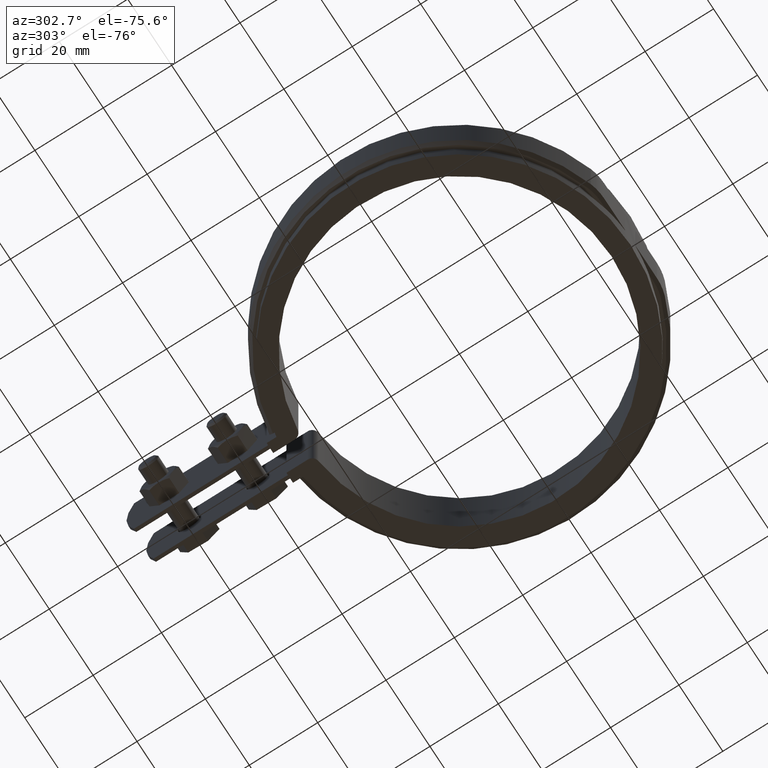
[diagram: clean part render]
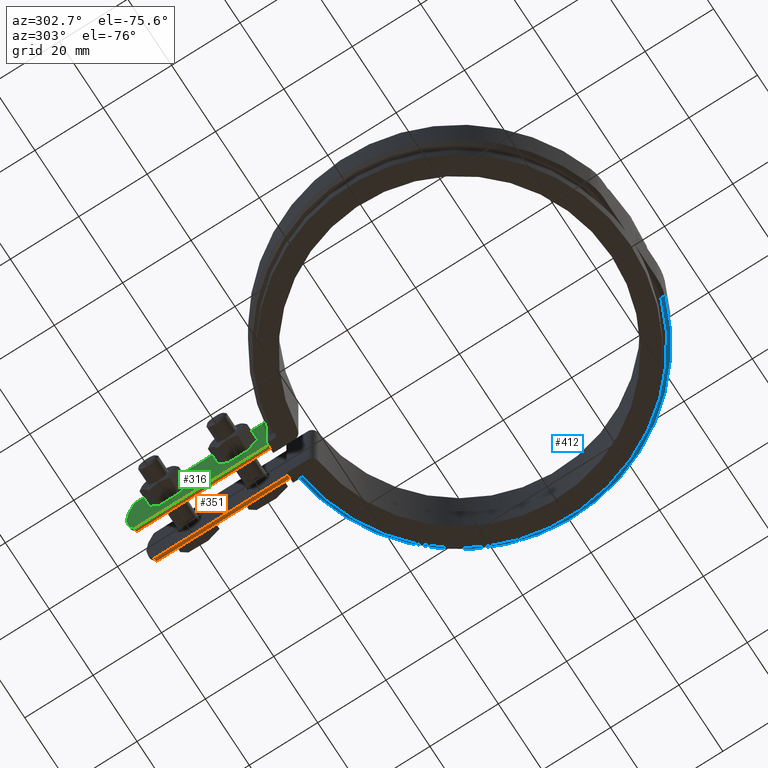
[diagram: same view with three faces highlighted in distinct colors, each labeled with its STEP entity id]
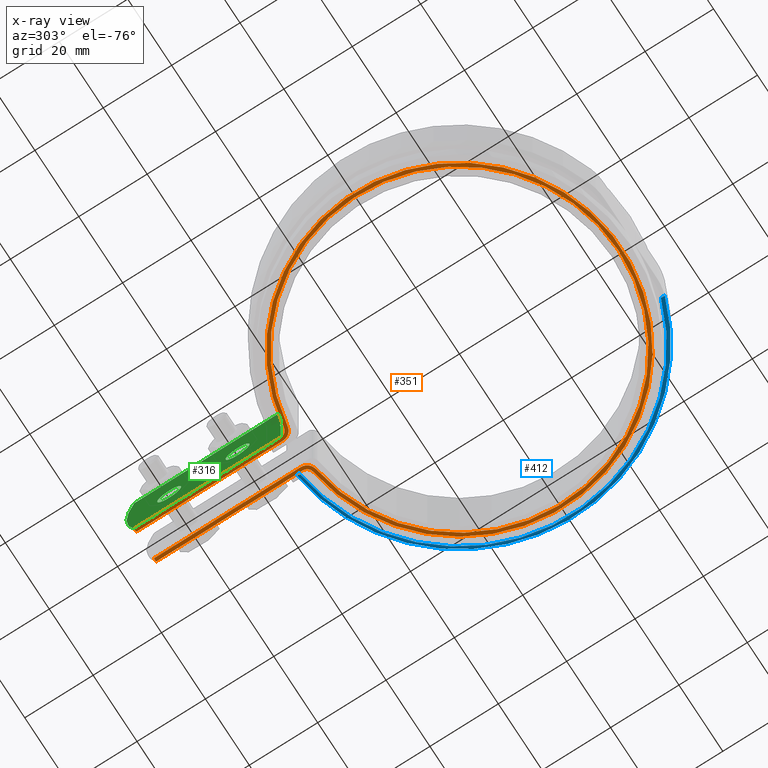
[diagram: x-ray of the same camera — body ghosted, the three highlighted faces saturated]
A machine part, auxiliary view with three faces highlighted in distinct colors.
The next image is the same camera in x-ray (body ghosted, the three faces saturated) — at least one of them is partly hidden behind the body in this view.
Their STEP definitions:

[orange] entity #351 — the highlighted planar face has unit normal (0, 0, -1).
#351 = ADVANCED_FACE( '', ( #590 ), #591, .T. );
#590 = FACE_OUTER_BOUND( '', #1278, .T. );
#591 = PLANE( '', #1279 );
#1278 = EDGE_LOOP( '', ( #2614, #2615, #2616, #2617, #2618, #2619, #2620, #2621, #2622, #2623, #2624, #2625 ) );
#1279 = AXIS2_PLACEMENT_3D( '', #2626, #2627, #2628 );
#2614 = ORIENTED_EDGE( '', *, *, #4020, .F. );
#2615 = ORIENTED_EDGE( '', *, *, #4126, .T. );
#2616 = ORIENTED_EDGE( '', *, *, #4117, .F. );
#2617 = ORIENTED_EDGE( '', *, *, #4125, .F. );
#2618 = ORIENTED_EDGE( '', *, *, #4047, .F. );
#2619 = ORIENTED_EDGE( '', *, *, #4122, .F. );
#2620 = ORIENTED_EDGE( '', *, *, #4015, .F. );
#2621 = ORIENTED_EDGE( '', *, *, #4136, .T. );
#2622 = ORIENTED_EDGE( '', *, *, #4110, .F. );
#2623 = ORIENTED_EDGE( '', *, *, #4128, .F. );
#2624 = ORIENTED_EDGE( '', *, *, #4086, .F. );
#2625 = ORIENTED_EDGE( '', *, *, #4137, .F. );
#2626 = CARTESIAN_POINT( '', ( -7.00000000000000, 49.0530580086502, -12.5000000000000 ) );
#2627 = DIRECTION( '', ( 0.000000000000000, 0.000000000000000, -1.00000000000000 ) );
#2628 = DIRECTION( '', ( 1.00000000000000, -6.16283340149655E-017, 0.000000000000000 ) );
#4015 = EDGE_CURVE( '', #4513, #4508, #4515, .T. );
#4020 = EDGE_CURVE( '', #4523, #4525, #4526, .T. );
#4047 = EDGE_CURVE( '', #4575, #4577, #4578, .T. );
#4086 = EDGE_CURVE( '', #4651, #4653, #4654, .T. );
#4110 = EDGE_CURVE( '', #4684, #4686, #4687, .T. );
#4117 = EDGE_CURVE( '', #4698, #4700, #4701, .T. );
#4122 = EDGE_CURVE( '', #4508, #4575, #4708, .T. );
#4125 = EDGE_CURVE( '', #4577, #4698, #4711, .T. );
#4126 = EDGE_CURVE( '', #4523, #4700, #4712, .T. );
#4128 = EDGE_CURVE( '', #4653, #4684, #4714, .T. );
#4136 = EDGE_CURVE( '', #4513, #4686, #4722, .T. );
#4137 = EDGE_CURVE( '', #4525, #4651, #4723, .T. );
#4508 = VERTEX_POINT( '', #5334 );
#4513 = VERTEX_POINT( '', #5341 );
#4515 = LINE( '', #5343, #5344 );
#4523 = VERTEX_POINT( '', #5361 );
#4525 = VERTEX_POINT( '', #5363 );
#4526 = LINE( '', #5364, #5365 );
#4575 = VERTEX_POINT( '', #5582 );
#4577 = VERTEX_POINT( '', #5585 );
#4578 = CIRCLE( '', #5586, 46.5500000000000 );
#4651 = VERTEX_POINT( '', #6231 );
#4653 = VERTEX_POINT( '', #6234 );
#4654 = CIRCLE( '', #6235, 47.5500000000000 );
#4684 = VERTEX_POINT( '', #6475 );
#4686 = VERTEX_POINT( '', #6478 );
#4687 = LINE( '', #6479, #6480 );
#4698 = VERTEX_POINT( '', #6493 );
#4700 = VERTEX_POINT( '', #6496 );
#4701 = LINE( '', #6497, #6498 );
#4708 = CIRCLE( '', #6505, 3.00000000000000 );
#4711 = CIRCLE( '', #6539, 3.00000000000000 );
#4712 = LINE( '', #6540, #6541 );
#4714 = CIRCLE( '', #6544, 2.00000000000000 );
#4722 = LINE( '', #6609, #6610 );
#4723 = CIRCLE( '', #6611, 2.00000000000000 );
#5334 = CARTESIAN_POINT( '', ( 4.00000000000000, 49.0530580086502, -12.5000000000000 ) );
#5341 = CARTESIAN_POINT( '', ( 3.99999999999999, 91.9565717536124, -12.5000000000000 ) );
#5343 = CARTESIAN_POINT( '', ( 3.99999999999999, 94.1963881048236, -12.5000000000000 ) );
#5344 = VECTOR( '', #8241, 1000.00000000000 );
#5361 = CARTESIAN_POINT( '', ( -4.99999999999999, 91.9565717536124, -12.5000000000000 ) );
#5363 = CARTESIAN_POINT( '', ( -5.00000000000000, 49.0530580086502, -12.5000000000000 ) );
#5364 = CARTESIAN_POINT( '', ( -4.99999999999999, 94.1963881048236, -12.5000000000000 ) );
#5365 = VECTOR( '', #8247, 1000.00000000000 );
#5582 = CARTESIAN_POINT( '', ( 6.57618567103937, 46.0831453138782, -12.5000000000000 ) );
#5585 = CARTESIAN_POINT( '', ( -6.57618567103938, 46.0831453138782, -12.5000000000000 ) );
#5586 = AXIS2_PLACEMENT_3D( '', #8286, #8287, #8288 );
#6231 = CARTESIAN_POINT( '', ( -6.71745711402624, 47.0731162121356, -12.5000000000000 ) );
#6234 = CARTESIAN_POINT( '', ( 6.71745711402622, 47.0731162121356, -12.5000000000000 ) );
#6235 = AXIS2_PLACEMENT_3D( '', #8323, #8324, #8325 );
#6475 = CARTESIAN_POINT( '', ( 5.00000000000000, 49.0530580086502, -12.5000000000000 ) );
#6478 = CARTESIAN_POINT( '', ( 4.99999999999999, 91.9565717536124, -12.5000000000000 ) );
#6479 = CARTESIAN_POINT( '', ( 5.00000000000000, 49.0530580086502, -12.5000000000000 ) );
#6480 = VECTOR( '', #8341, 1000.00000000000 );
#6493 = CARTESIAN_POINT( '', ( -4.00000000000000, 49.0530580086502, -12.5000000000000 ) );
#6496 = CARTESIAN_POINT( '', ( -4.00000000000000, 91.9565717536124, -12.5000000000000 ) );
#6497 = CARTESIAN_POINT( '', ( -4.00000000000000, 49.0530580086502, -12.5000000000000 ) );
#6498 = VECTOR( '', #8354, 1000.00000000000 );
#6505 = AXIS2_PLACEMENT_3D( '', #8367, #8368, #8369 );
#6539 = AXIS2_PLACEMENT_3D( '', #8373, #8374, #8375 );
#6540 = CARTESIAN_POINT( '', ( -125.659314806911, 91.9565717536124, -12.5000000000000 ) );
#6541 = VECTOR( '', #8376, 1000.00000000000 );
#6544 = AXIS2_PLACEMENT_3D( '', #8378, #8379, #8380 );
#6609 = CARTESIAN_POINT( '', ( -125.659314806911, 91.9565717536124, -12.5000000000000 ) );
#6610 = VECTOR( '', #8382, 1000.00000000000 );
#6611 = AXIS2_PLACEMENT_3D( '', #8383, #8384, #8385 );
#8241 = DIRECTION( '', ( 6.16283340149654E-017, -1.00000000000000, 0.000000000000000 ) );
#8247 = DIRECTION( '', ( -6.16283340149655E-017, -1.00000000000000, 0.000000000000000 ) );
#8286 = CARTESIAN_POINT( '', ( -3.46944695195361E-015, 0.000000000000000, -12.5000000000000 ) );
#8287 = DIRECTION( '', ( 0.000000000000000, 0.000000000000000, -1.00000000000000 ) );
#8288 = DIRECTION( '', ( 1.00000000000000, -6.16283340149655E-017, 0.000000000000000 ) );
#8323 = CARTESIAN_POINT( '', ( -3.46944695195361E-015, 0.000000000000000, -12.5000000000000 ) );
#8324 = DIRECTION( '', ( 0.000000000000000, 0.000000000000000, 1.00000000000000 ) );
#8325 = DIRECTION( '', ( 1.00000000000000, -6.16283340149655E-017, 0.000000000000000 ) );
#8341 = DIRECTION( '', ( -6.16283340149654E-017, 1.00000000000000, 0.000000000000000 ) );
#8354 = DIRECTION( '', ( 6.16283340149655E-017, 1.00000000000000, 0.000000000000000 ) );
#8367 = CARTESIAN_POINT( '', ( 7.00000000000000, 49.0530580086502, -12.5000000000000 ) );
#8368 = DIRECTION( '', ( 0.000000000000000, 0.000000000000000, 1.00000000000000 ) );
#8369 = DIRECTION( '', ( -1.00000000000000, 6.16283340149655E-017, 0.000000000000000 ) );
#8373 = CARTESIAN_POINT( '', ( -7.00000000000000, 49.0530580086502, -12.5000000000000 ) );
#8374 = DIRECTION( '', ( 0.000000000000000, 0.000000000000000, 1.00000000000000 ) );
#8375 = DIRECTION( '', ( 1.00000000000000, -6.16283340149655E-017, 0.000000000000000 ) );
#8376 = DIRECTION( '', ( 1.00000000000000, -6.16283340149656E-017, 0.000000000000000 ) );
#8378 = CARTESIAN_POINT( '', ( 7.00000000000000, 49.0530580086502, -12.5000000000000 ) );
#8379 = DIRECTION( '', ( 0.000000000000000, 0.000000000000000, -1.00000000000000 ) );
#8380 = DIRECTION( '', ( -1.00000000000000, 6.16283340149655E-017, 0.000000000000000 ) );
#8382 = DIRECTION( '', ( 1.00000000000000, -6.16283340149656E-017, 0.000000000000000 ) );
#8383 = CARTESIAN_POINT( '', ( -7.00000000000000, 49.0530580086502, -12.5000000000000 ) );
#8384 = DIRECTION( '', ( 0.000000000000000, 0.000000000000000, -1.00000000000000 ) );
#8385 = DIRECTION( '', ( 1.00000000000000, -6.16283340149655E-017, 0.000000000000000 ) );

[blue] entity #412 — the highlighted conical surface has half-angle 45 deg.
#412 = ADVANCED_FACE( '', ( #718 ), #719, .T. );
#718 = FACE_OUTER_BOUND( '', #1690, .T. );
#719 = CONICAL_SURFACE( '', #1691, 51.0500000000000, 0.785398163397452 );
#1690 = EDGE_LOOP( '', ( #3281, #3282, #3283, #3284 ) );
#1691 = AXIS2_PLACEMENT_3D( '', #3285, #3286, #3287 );
#3281 = ORIENTED_EDGE( '', *, *, #4305, .F. );
#3282 = ORIENTED_EDGE( '', *, *, #4338, .F. );
#3283 = ORIENTED_EDGE( '', *, *, #4340, .F. );
#3284 = ORIENTED_EDGE( '', *, *, #4270, .F. );
#3285 = CARTESIAN_POINT( '', ( 0.000000000000000, -1.38777878078145E-014, -8.50000000000000 ) );
#3286 = DIRECTION( '', ( 0.000000000000000, 0.000000000000000, 1.00000000000000 ) );
#3287 = DIRECTION( '', ( 1.00000000000000, 0.000000000000000, 0.000000000000000 ) );
#4270 = EDGE_CURVE( '', #4955, #4948, #4957, .F. );
#4305 = EDGE_CURVE( '', #5013, #4955, #5015, .T. );
#4338 = EDGE_CURVE( '', #5058, #5013, #5065, .T. );
#4340 = EDGE_CURVE( '', #4948, #5058, #5067, .T. );
#4948 = VERTEX_POINT( '', #7586 );
#4955 = VERTEX_POINT( '', #7594 );
#4957 = CIRCLE( '', #7597, 51.0500000000000 );
#5013 = VERTEX_POINT( '', #7676 );
#5015 = B_SPLINE_CURVE_WITH_KNOTS( '', 3, ( #7679, #7680, #7681, #7682 ), .UNSPECIFIED., .F., .F., ( 4, 4 ), ( 1.96261557335472E-017, 0.00141906111018386 ), .UNSPECIFIED. );
#5058 = VERTEX_POINT( '', #7746 );
#5065 = CIRCLE( '', #7755, 52.0500000000000 );
#5067 = LINE( '', #7758, #7759 );
#7586 = CARTESIAN_POINT( '', ( 16.5458912025651, -48.2942645074224, -8.50000000000000 ) );
#7594 = CARTESIAN_POINT( '', ( 6.00000000000001, 50.6961783569531, -8.50000000000000 ) );
#7597 = AXIS2_PLACEMENT_3D( '', #8529, #8530, #8531 );
#7676 = CARTESIAN_POINT( '', ( 6.00000000000001, 51.7030221553828, -7.50000000000000 ) );
#7679 = CARTESIAN_POINT( '', ( 6.00000000000001, 51.7030221553827, -7.50000000000000 ) );
#7680 = CARTESIAN_POINT( '', ( 6.00000000000001, 51.3674295438524, -7.83335547030038 ) );
#7681 = CARTESIAN_POINT( '', ( 6.00000000000001, 51.0318153765527, -8.16668924174697 ) );
#7682 = CARTESIAN_POINT( '', ( 6.00000000000001, 50.6961783569531, -8.50000000000001 ) );
#7746 = CARTESIAN_POINT( '', ( 16.8700026854753, -49.2402834008097, -7.50000000000000 ) );
#7755 = AXIS2_PLACEMENT_3D( '', #8642, #8643, #8644 );
#7758 = CARTESIAN_POINT( '', ( 16.5458912025651, -48.2942645074224, -8.50000000000000 ) );
#7759 = VECTOR( '', #8646, 1000.00000000000 );
#8529 = CARTESIAN_POINT( '', ( 0.000000000000000, -1.38777878078145E-014, -8.50000000000000 ) );
#8530 = DIRECTION( '', ( 0.000000000000000, 0.000000000000000, 1.00000000000000 ) );
#8531 = DIRECTION( '', ( 1.00000000000000, 0.000000000000000, 0.000000000000000 ) );
#8642 = CARTESIAN_POINT( '', ( 0.000000000000000, -1.38777878078145E-014, -7.50000000000000 ) );
#8643 = DIRECTION( '', ( 0.000000000000000, 0.000000000000000, 1.00000000000000 ) );
#8644 = DIRECTION( '', ( 1.00000000000000, 0.000000000000000, 0.000000000000000 ) );
#8646 = DIRECTION( '', ( 0.229181427426219, -0.668936374644767, 0.707106781186545 ) );

[green] entity #316 — the highlighted planar face has unit normal (-1, 0, 0).
#316 = ADVANCED_FACE( '', ( #510, #511, #512 ), #513, .T. );
#510 = FACE_OUTER_BOUND( '', #924, .T. );
#511 = FACE_BOUND( '', #925, .T. );
#512 = FACE_BOUND( '', #926, .T. );
#513 = PLANE( '', #927 );
#924 = EDGE_LOOP( '', ( #1905, #1906, #1907, #1908, #1909, #1910 ) );
#925 = EDGE_LOOP( '', ( #1911 ) );
#926 = EDGE_LOOP( '', ( #1912 ) );
#927 = AXIS2_PLACEMENT_3D( '', #1913, #1914, #1915 );
#1905 = ORIENTED_EDGE( '', *, *, #4016, .F. );
#1906 = ORIENTED_EDGE( '', *, *, #4017, .T. );
#1907 = ORIENTED_EDGE( '', *, *, #4018, .F. );
#1908 = ORIENTED_EDGE( '', *, *, #4019, .T. );
#1909 = ORIENTED_EDGE( '', *, *, #4020, .T. );
#1910 = ORIENTED_EDGE( '', *, *, #4021, .T. );
#1911 = ORIENTED_EDGE( '', *, *, #4022, .T. );
#1912 = ORIENTED_EDGE( '', *, *, #4023, .T. );
#1913 = CARTESIAN_POINT( '', ( -4.99999999999999, 94.1963881048236, -12.5000000000000 ) );
#1914 = DIRECTION( '', ( -1.00000000000000, 6.16283340149655E-017, 0.000000000000000 ) );
#1915 = DIRECTION( '', ( 6.16283340149655E-017, 1.00000000000000, 0.000000000000000 ) );
#4016 = EDGE_CURVE( '', #4516, #4517, #4518, .T. );
#4017 = EDGE_CURVE( '', #4516, #4519, #4520, .T. );
#4018 = EDGE_CURVE( '', #4521, #4519, #4522, .T. );
#4019 = EDGE_CURVE( '', #4521, #4523, #4524, .T. );
#4020 = EDGE_CURVE( '', #4523, #4525, #4526, .T. );
#4021 = EDGE_CURVE( '', #4525, #4517, #4527, .T. );
#4022 = EDGE_CURVE( '', #4528, #4528, #4529, .F. );
#4023 = EDGE_CURVE( '', #4530, #4530, #4531, .F. );
#4516 = VERTEX_POINT( '', #5345 );
#4517 = VERTEX_POINT( '', #5346 );
#4518 = B_SPLINE_CURVE_WITH_KNOTS( '', 3, ( #5347, #5348, #5349, #5350, #5351, #5352, #5353, #5354 ), .UNSPECIFIED., .F., .F., ( 4, 2, 2, 4 ), ( 2.81892564846231E-017, 0.00168369248448247, 0.00252553872672369, 0.00336738496896491 ), .UNSPECIFIED. );
#4519 = VERTEX_POINT( '', #5355 );
#4520 = LINE( '', #5356, #5357 );
#4521 = VERTEX_POINT( '', #5358 );
#4522 = LINE( '', #5359, #5360 );
#4523 = VERTEX_POINT( '', #5361 );
#4524 = CIRCLE( '', #5362, 36.0000000000002 );
#4525 = VERTEX_POINT( '', #5363 );
#4526 = LINE( '', #5364, #5365 );
#4527 = LINE( '', #5366, #5367 );
#4528 = VERTEX_POINT( '', #5368 );
#4529 = CIRCLE( '', #5369, 3.50000000000002 );
#4530 = VERTEX_POINT( '', #5370 );
#4531 = CIRCLE( '', #5371, 3.50000000000002 );
#5345 = CARTESIAN_POINT( '', ( -5.00000000000000, 49.0530580086502, 1.67210469196954 ) );
#5346 = CARTESIAN_POINT( '', ( -5.00000000000000, 49.0530580086502, -1.67210469196752 ) );
#5347 = CARTESIAN_POINT( '', ( -5.00000000000000, 49.0530580086502, 1.67210469196951 ) );
#5348 = CARTESIAN_POINT( '', ( -5.00000000000000, 49.2132706009071, 1.12597755052490 ) );
#5349 = CARTESIAN_POINT( '', ( -4.99999999999999, 49.2954065745053, 0.570560776817815 ) );
#5350 = CARTESIAN_POINT( '', ( -4.99999999999999, 49.2962121759444, -0.277127459907981 ) );
#5351 = CARTESIAN_POINT( '', ( -4.99999999999999, 49.2752645961910, -0.562483787798165 ) );
#5352 = CARTESIAN_POINT( '', ( -4.99999999999999, 49.1937060211499, -1.12236178020890 ) );
#5353 = CARTESIAN_POINT( '', ( -4.99999999999990, 49.1332006194174, -1.39891733316127 ) );
#5354 = CARTESIAN_POINT( '', ( -4.99999999999990, 49.0530580086502, -1.67210469196749 ) );
#5355 = CARTESIAN_POINT( '', ( -5.00000000000000, 49.0530580086502, 12.5000000000000 ) );
#5356 = CARTESIAN_POINT( '', ( -5.00000000000000, 49.0530580086502, -12.5000000000000 ) );
#5357 = VECTOR( '', #8242, 1000.00000000000 );
#5358 = CARTESIAN_POINT( '', ( -4.99999999999999, 91.9565717536127, 12.5000000000000 ) );
#5359 = CARTESIAN_POINT( '', ( -4.99999999999999, 94.1963881048236, 12.5000000000000 ) );
#5360 = VECTOR( '', #8243, 1000.00000000000 );
#5361 = CARTESIAN_POINT( '', ( -4.99999999999999, 91.9565717536124, -12.5000000000000 ) );
#5362 = AXIS2_PLACEMENT_3D( '', #8244, #8245, #8246 );
#5363 = CARTESIAN_POINT( '', ( -5.00000000000000, 49.0530580086502, -12.5000000000000 ) );
#5364 = CARTESIAN_POINT( '', ( -4.99999999999999, 94.1963881048236, -12.5000000000000 ) );
#5365 = VECTOR( '', #8247, 1000.00000000000 );
#5366 = CARTESIAN_POINT( '', ( -5.00000000000000, 49.0530580086502, -12.5000000000000 ) );
#5367 = VECTOR( '', #8248, 1000.00000000000 );
#5368 = CARTESIAN_POINT( '', ( -5.00000000000000, 78.1963881048232, -4.33680868994202E-014 ) );
#5369 = AXIS2_PLACEMENT_3D( '', #8249, #8250, #8251 );
#5370 = CARTESIAN_POINT( '', ( -5.00000000000000, 58.1963881048232, -4.33680868994202E-014 ) );
#5371 = AXIS2_PLACEMENT_3D( '', #8252, #8253, #8254 );
#8242 = DIRECTION( '', ( 0.000000000000000, 0.000000000000000, 1.00000000000000 ) );
#8243 = DIRECTION( '', ( -6.16283340149655E-017, -1.00000000000000, 0.000000000000000 ) );
#8244 = CARTESIAN_POINT( '', ( -4.99999999999998, 58.1963881048226, 4.16333634234434E-013 ) );
#8245 = DIRECTION( '', ( -1.00000000000000, 6.16283340149655E-017, 0.000000000000000 ) );
#8246 = DIRECTION( '', ( -6.16283340149655E-017, -1.00000000000000, 0.000000000000000 ) );
#8247 = DIRECTION( '', ( -6.16283340149655E-017, -1.00000000000000, 0.000000000000000 ) );
#8248 = DIRECTION( '', ( 0.000000000000000, 0.000000000000000, 1.00000000000000 ) );
#8249 = CARTESIAN_POINT( '', ( -5.00000000000000, 81.6963881048232, -4.33680868994202E-014 ) );
#8250 = DIRECTION( '', ( -1.00000000000000, 6.16283340149655E-017, 0.000000000000000 ) );
#8251 = DIRECTION( '', ( -6.16283340149655E-017, -1.00000000000000, 0.000000000000000 ) );
#8252 = CARTESIAN_POINT( '', ( -5.00000000000000, 61.6963881048232, -4.33680868994202E-014 ) );
#8253 = DIRECTION( '', ( -1.00000000000000, 6.16283340149655E-017, 0.000000000000000 ) );
#8254 = DIRECTION( '', ( -6.16283340149655E-017, -1.00000000000000, 0.000000000000000 ) );